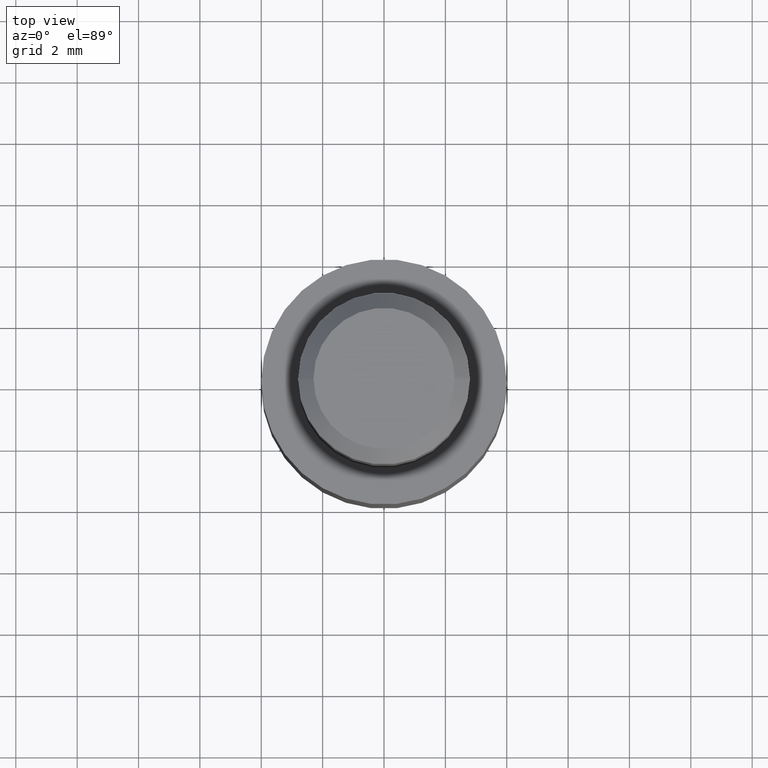
[diagram: clean part render]
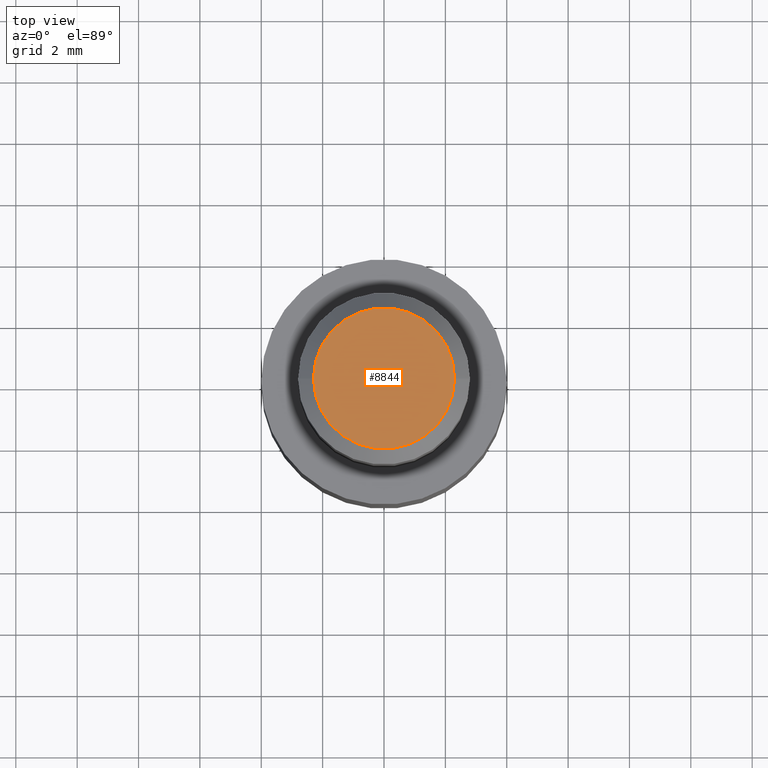
[diagram: same view with one face highlighted and labeled with its STEP entity id]
A machine part, top view. The second image highlights one B-rep face of the part: STEP entity #8844.
In plain terms, the highlighted planar face has unit normal (0, 0, 1).
Its self-contained STEP definition (entity closure, byte-faithful):
#72 = FACE_OUTER_BOUND ( 'NONE', #11751, .T. ) ;
#124 = CARTESIAN_POINT ( 'NONE',  ( 0.0000000000000000000, 0.0000000000000000000, 21.00000000000000000 ) ) ;
#679 = CIRCLE ( 'NONE', #11600, 2.300000000000010000 ) ;
#1520 = CARTESIAN_POINT ( 'NONE',  ( 2.300000000000010000, 3.122849337825756800E-016, 21.00000000000000000 ) ) ;
#1756 = EDGE_CURVE ( 'NONE', #5919, #9448, #679, .T. ) ;
#1955 = DIRECTION ( 'NONE',  ( 1.000000000000000000, 0.0000000000000000000, 0.0000000000000000000 ) ) ;
#2828 = DIRECTION ( 'NONE',  ( 1.000000000000000000, 0.0000000000000000000, -0.0000000000000000000 ) ) ;
#3747 = DIRECTION ( 'NONE',  ( 0.0000000000000000000, 0.0000000000000000000, 1.000000000000000000 ) ) ;
#4311 = AXIS2_PLACEMENT_3D ( 'NONE', #9709, #5163, #6840 ) ;
#5163 = DIRECTION ( 'NONE',  ( 0.0000000000000000000, 0.0000000000000000000, 1.000000000000000000 ) ) ;
#5919 = VERTEX_POINT ( 'NONE', #7020 ) ;
#6475 = PLANE ( 'NONE',  #8869 ) ;
#6840 = DIRECTION ( 'NONE',  ( 1.000000000000000000, 0.0000000000000000000, 0.0000000000000000000 ) ) ;
#7020 = CARTESIAN_POINT ( 'NONE',  ( -2.300000000000010000, 0.0000000000000000000, 21.00000000000000000 ) ) ;
#7314 = DIRECTION ( 'NONE',  ( 0.0000000000000000000, 0.0000000000000000000, 1.000000000000000000 ) ) ;
#7965 = CIRCLE ( 'NONE', #4311, 2.300000000000010000 ) ;
#8239 = CARTESIAN_POINT ( 'NONE',  ( 0.0000000000000000000, 0.0000000000000000000, 21.00000000000000000 ) ) ;
#8844 = ADVANCED_FACE ( 'NONE', ( #72 ), #6475, .T. ) ;
#8869 = AXIS2_PLACEMENT_3D ( 'NONE', #8239, #3747, #2828 ) ;
#8999 = ORIENTED_EDGE ( 'NONE', *, *, #1756, .T. ) ;
#9448 = VERTEX_POINT ( 'NONE', #1520 ) ;
#9709 = CARTESIAN_POINT ( 'NONE',  ( 0.0000000000000000000, 0.0000000000000000000, 21.00000000000000000 ) ) ;
#10346 = EDGE_CURVE ( 'NONE', #9448, #5919, #7965, .T. ) ;
#10769 = ORIENTED_EDGE ( 'NONE', *, *, #10346, .T. ) ;
#11600 = AXIS2_PLACEMENT_3D ( 'NONE', #124, #7314, #1955 ) ;
#11751 = EDGE_LOOP ( 'NONE', ( #8999, #10769 ) ) ;